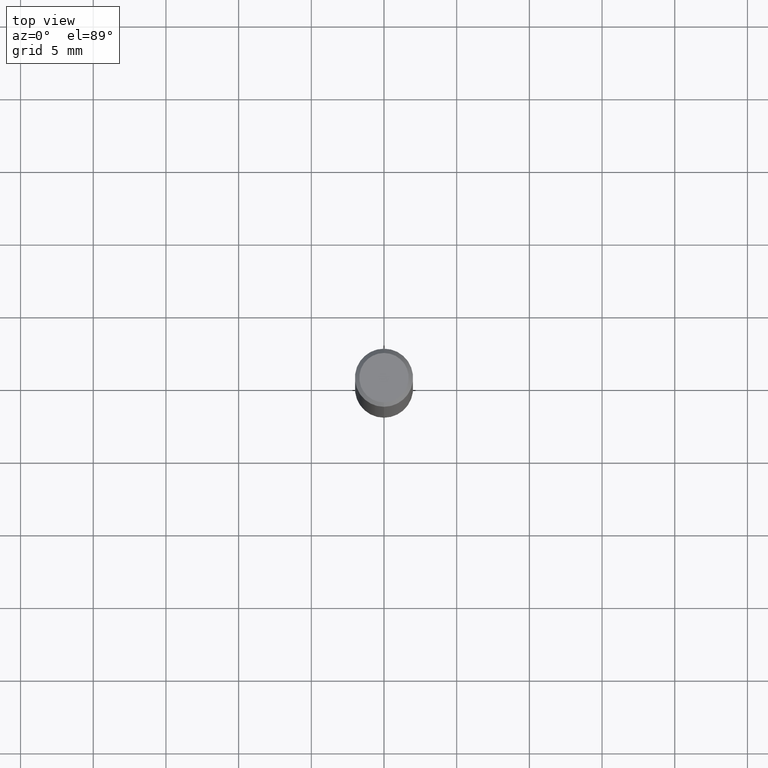
[diagram: clean part render]
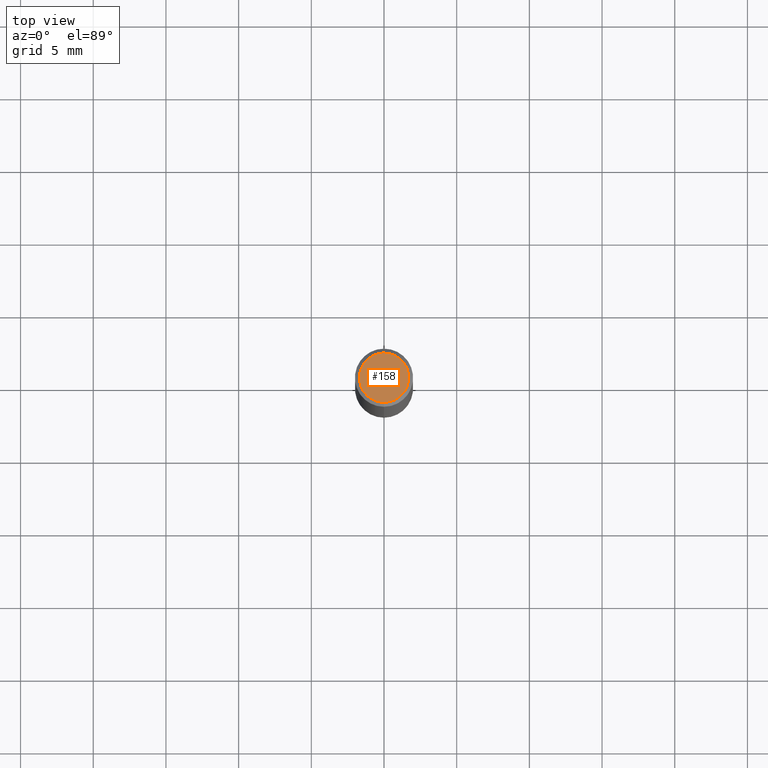
[diagram: same view with one face highlighted and labeled with its STEP entity id]
A machine part, top view. The second image highlights one B-rep face of the part: STEP entity #158.
In plain terms, the highlighted planar face has unit normal (-0, 0, 1).
Its self-contained STEP definition (entity closure, byte-faithful):
#114=EDGE_CURVE('',#144,#166,#242,.T.);
#120=EDGE_CURVE('',#166,#144,#248,.T.);
#144=VERTEX_POINT('',#273);
#158=ADVANCED_FACE('',(#292),#293,.T.);
#166=VERTEX_POINT('',#301);
#242=CIRCLE('',#386,1.7);
#248=CIRCLE('',#394,1.7);
#273=CARTESIAN_POINT('',(2.08183080149804E-016,-1.7,0.0));
#292=FACE_OUTER_BOUND('',#445,.T.);
#293=PLANE('',#446);
#301=CARTESIAN_POINT('',(0.0,1.7,0.0));
#386=AXIS2_PLACEMENT_3D('',#535,#536,#537);
#394=AXIS2_PLACEMENT_3D('',#541,#542,#543);
#445=EDGE_LOOP('',(#590,#591));
#446=AXIS2_PLACEMENT_3D('',#592,#593,#594);
#535=CARTESIAN_POINT('',(0.0,0.0,0.0));
#536=DIRECTION('',(0.0,0.0,-1.0));
#537=DIRECTION('',(0.0,1.0,0.0));
#541=CARTESIAN_POINT('',(0.0,0.0,0.0));
#542=DIRECTION('',(0.0,0.0,-1.0));
#543=DIRECTION('',(0.0,1.0,0.0));
#590=ORIENTED_EDGE('',*,*,#120,.F.);
#591=ORIENTED_EDGE('',*,*,#114,.F.);
#592=CARTESIAN_POINT('',(0.0,0.85,0.0));
#593=DIRECTION('',(-0.0,0.0,1.0));
#594=DIRECTION('',(0.0,-1.0,0.0));